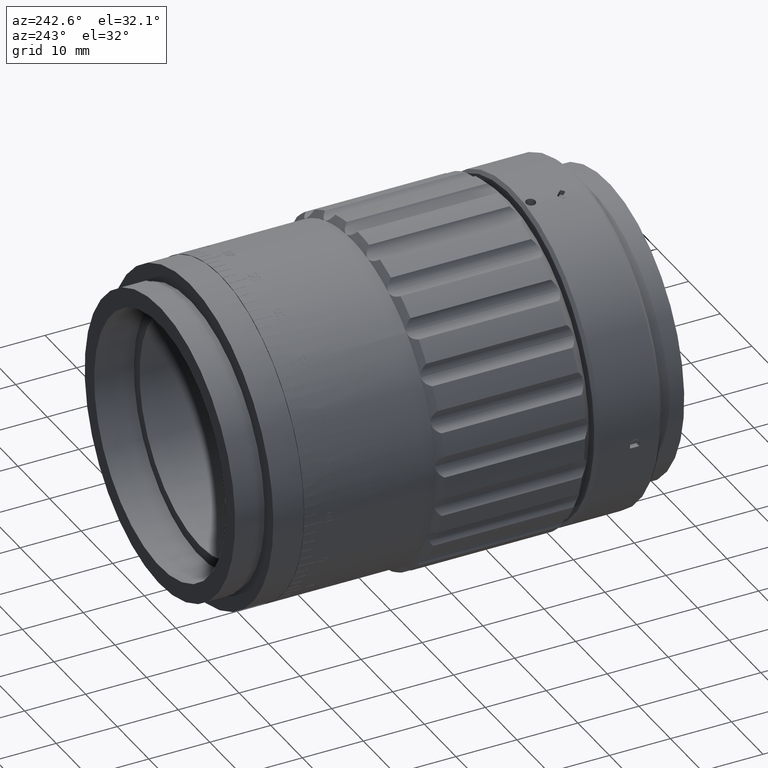
[diagram: clean part render]
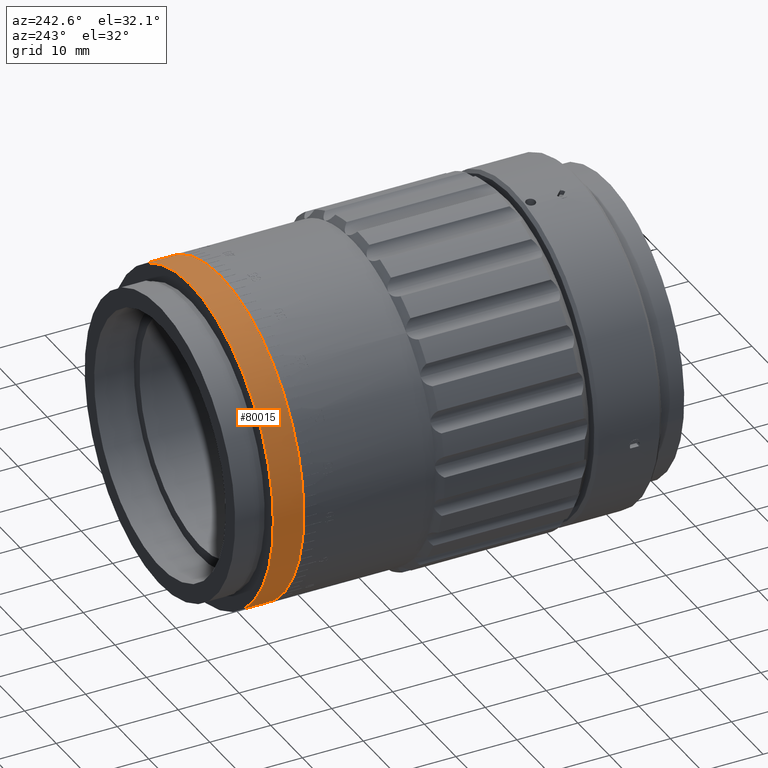
[diagram: same view with one face highlighted and labeled with its STEP entity id]
A machine part, auxiliary view. The second image highlights one B-rep face of the part: STEP entity #80015.
In plain terms, the highlighted cylindrical surface (partial cylindrical patch) has radius 26.25 mm, axis along (-0, 1, 0).
Its self-contained STEP definition (entity closure, byte-faithful):
#4157 = VERTEX_POINT ( 'NONE', #25140 ) ;
#4446 = CYLINDRICAL_SURFACE ( 'NONE', #45855, 26.25000000000000400 ) ;
#5800 = VECTOR ( 'NONE', #18446, 1000.000000000000000 ) ;
#7654 = LINE ( 'NONE', #68710, #73286 ) ;
#12470 = DIRECTION ( 'NONE',  ( 0.0000000000000000000, 0.0000000000000000000, 1.000000000000000000 ) ) ;
#15931 = CARTESIAN_POINT ( 'NONE',  ( 0.0000000000000000000, 13.51240201808208500, 26.25000000000000400 ) ) ;
#16099 = CARTESIAN_POINT ( 'NONE',  ( 3.214697847761802400E-015, 13.51240201808208500, -26.25000000000000400 ) ) ;
#18446 = DIRECTION ( 'NONE',  ( -0.0000000000000000000, 1.000000000000000000, -0.0000000000000000000 ) ) ;
#18586 = EDGE_CURVE ( 'NONE', #4157, #66204, #26978, .T. ) ;
#19587 = EDGE_LOOP ( 'NONE', ( #60196, #71689, #23389, #81912 ) ) ;
#21537 = DIRECTION ( 'NONE',  ( 0.0000000000000000000, 0.0000000000000000000, 1.000000000000000000 ) ) ;
#22380 = DIRECTION ( 'NONE',  ( -0.0000000000000000000, 1.000000000000000000, -0.0000000000000000000 ) ) ;
#22481 = AXIS2_PLACEMENT_3D ( 'NONE', #41415, #22380, #21537 ) ;
#23389 = ORIENTED_EDGE ( 'NONE', *, *, #35460, .T. ) ;
#25140 = CARTESIAN_POINT ( 'NONE',  ( 3.214697847761802400E-015, 18.51240201808208500, -26.25000000000000400 ) ) ;
#26093 = CIRCLE ( 'NONE', #29865, 26.25000000000000400 ) ;
#26978 = CIRCLE ( 'NONE', #22481, 26.25000000000000400 ) ;
#29865 = AXIS2_PLACEMENT_3D ( 'NONE', #52207, #78143, #37676 ) ;
#30940 = LINE ( 'NONE', #31321, #5800 ) ;
#31321 = CARTESIAN_POINT ( 'NONE',  ( 3.214697847761802400E-015, 27.76768902714551100, -26.25000000000000400 ) ) ;
#32317 = CARTESIAN_POINT ( 'NONE',  ( 0.0000000000000000000, 27.76768902714551100, 0.0000000000000000000 ) ) ;
#35460 = EDGE_CURVE ( 'NONE', #40886, #66204, #7654, .T. ) ;
#35737 = FACE_OUTER_BOUND ( 'NONE', #19587, .T. ) ;
#37676 = DIRECTION ( 'NONE',  ( 0.0000000000000000000, 0.0000000000000000000, 1.000000000000000000 ) ) ;
#38744 = DIRECTION ( 'NONE',  ( -0.0000000000000000000, 1.000000000000000000, -0.0000000000000000000 ) ) ;
#40886 = VERTEX_POINT ( 'NONE', #15931 ) ;
#41415 = CARTESIAN_POINT ( 'NONE',  ( 0.0000000000000000000, 18.51240201808208500, 0.0000000000000000000 ) ) ;
#45855 = AXIS2_PLACEMENT_3D ( 'NONE', #32317, #38744, #12470 ) ;
#48510 = EDGE_CURVE ( 'NONE', #80581, #4157, #30940, .T. ) ;
#52207 = CARTESIAN_POINT ( 'NONE',  ( 0.0000000000000000000, 13.51240201808208500, 0.0000000000000000000 ) ) ;
#60196 = ORIENTED_EDGE ( 'NONE', *, *, #48510, .F. ) ;
#61312 = CARTESIAN_POINT ( 'NONE',  ( 0.0000000000000000000, 18.51240201808208500, 26.25000000000000400 ) ) ;
#66204 = VERTEX_POINT ( 'NONE', #61312 ) ;
#68655 = EDGE_CURVE ( 'NONE', #80581, #40886, #26093, .T. ) ;
#68710 = CARTESIAN_POINT ( 'NONE',  ( 0.0000000000000000000, 27.76768902714551100, 26.25000000000000400 ) ) ;
#71689 = ORIENTED_EDGE ( 'NONE', *, *, #68655, .T. ) ;
#73286 = VECTOR ( 'NONE', #73363, 1000.000000000000000 ) ;
#73363 = DIRECTION ( 'NONE',  ( -0.0000000000000000000, 1.000000000000000000, -0.0000000000000000000 ) ) ;
#78143 = DIRECTION ( 'NONE',  ( -0.0000000000000000000, 1.000000000000000000, -0.0000000000000000000 ) ) ;
#80015 = ADVANCED_FACE ( 'NONE', ( #35737 ), #4446, .T. ) ;
#80581 = VERTEX_POINT ( 'NONE', #16099 ) ;
#81912 = ORIENTED_EDGE ( 'NONE', *, *, #18586, .F. ) ;